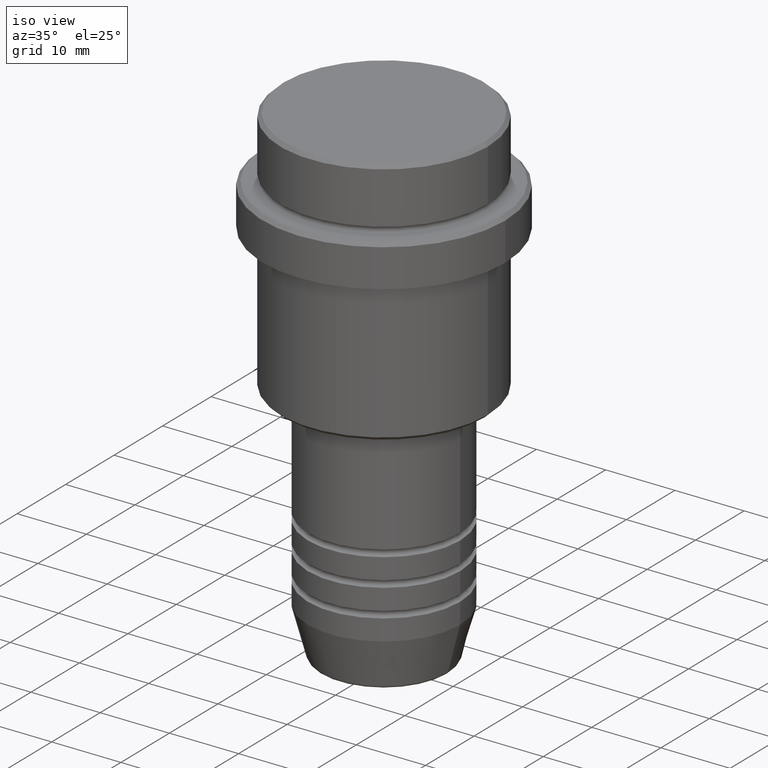
[diagram: clean part render]
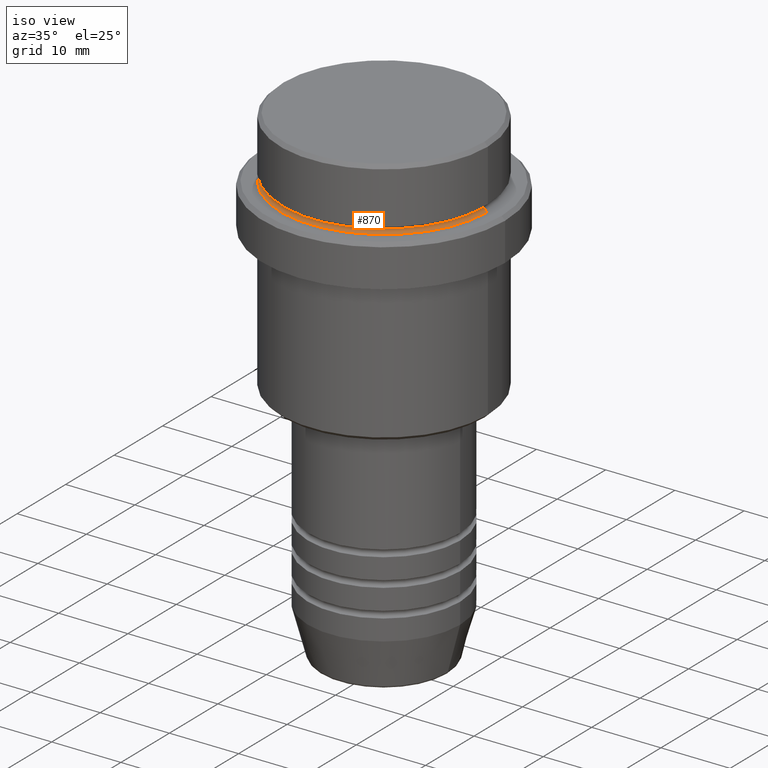
[diagram: same view with one face highlighted and labeled with its STEP entity id]
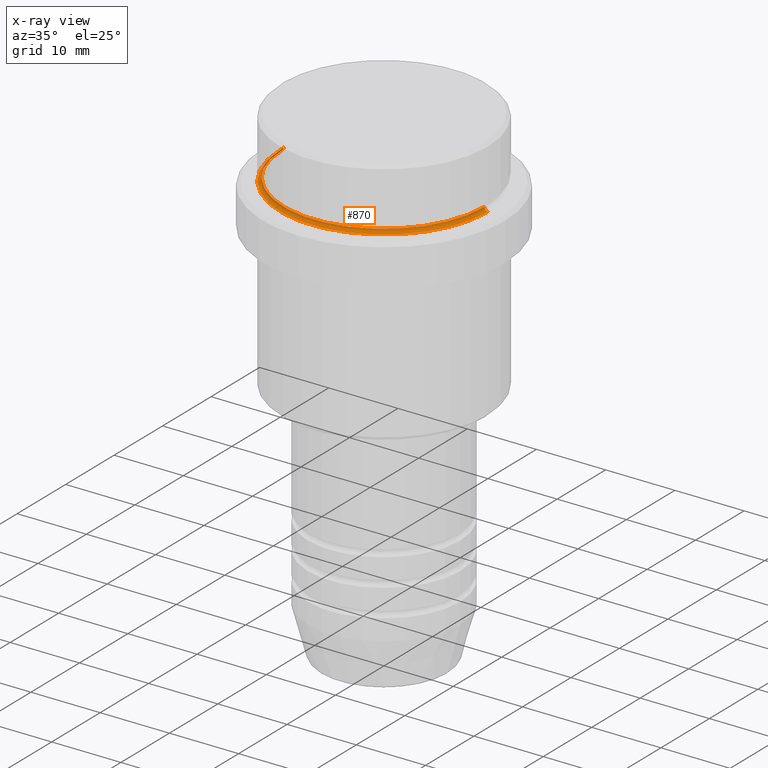
[diagram: x-ray of the same camera — body ghosted, the highlighted face saturated]
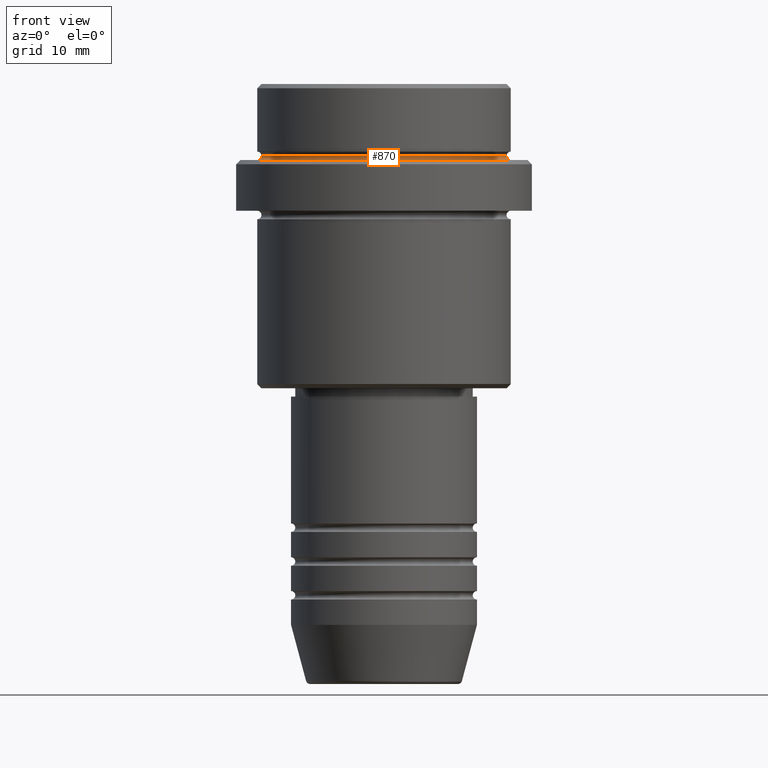
[diagram: same view with one face highlighted and labeled with its STEP entity id]
A machine part, iso view. The second image highlights one B-rep face of the part: STEP entity #870.
The next image is the same camera in x-ray: the body ghosted, the highlighted face saturated — about 3% of this face is hidden behind the body in this view.
A second angle (front view) of the same face is appended — the face is thin or edge-on in the first view.
In plain terms, the highlighted toroidal blend (fillet) surface has major radius 15 mm and minor (blend) radius 0.5 mm.
Its self-contained STEP definition (entity closure, byte-faithful):
#57 = DIRECTION ( 'NONE',  ( -0.000000000000000000, -0.000000000000000000, 1.000000000000000000 ) ) ;
#62 = DIRECTION ( 'NONE',  ( -1.000000000000000000, 1.224646799147349509E-16, 0.000000000000000000 ) ) ;
#64 = AXIS2_PLACEMENT_3D ( 'NONE', #711, #57, #879 ) ;
#135 = EDGE_CURVE ( 'NONE', #681, #762, #868, .T. ) ;
#202 = VERTEX_POINT ( 'NONE', #1125 ) ;
#233 = ORIENTED_EDGE ( 'NONE', *, *, #135, .F. ) ;
#245 = AXIS2_PLACEMENT_3D ( 'NONE', #562, #466, #901 ) ;
#286 = DIRECTION ( 'NONE',  ( 1.224646799147353207E-16, 1.000000000000000000, 0.000000000000000000 ) ) ;
#366 = CIRCLE ( 'NONE', #462, 0.5000000000000004441 ) ;
#370 = CARTESIAN_POINT ( 'NONE',  ( -14.99999999999999289, 1.836970198721028800E-15, -9.000000000000000000 ) ) ;
#394 = ORIENTED_EDGE ( 'NONE', *, *, #764, .F. ) ;
#403 = DIRECTION ( 'NONE',  ( 0.000000000000000000, 0.000000000000000000, -1.000000000000000000 ) ) ;
#425 = CARTESIAN_POINT ( 'NONE',  ( 14.99999999999999289, 0.000000000000000000, -9.000000000000000000 ) ) ;
#462 = AXIS2_PLACEMENT_3D ( 'NONE', #1046, #1263, #403 ) ;
#466 = DIRECTION ( 'NONE',  ( 0.000000000000000000, 0.000000000000000000, -1.000000000000000000 ) ) ;
#513 = CARTESIAN_POINT ( 'NONE',  ( -14.99999999999999289, 1.836970198721028800E-15, -8.499999999999998224 ) ) ;
#562 = CARTESIAN_POINT ( 'NONE',  ( 0.000000000000000000, 0.000000000000000000, -9.000000000000000000 ) ) ;
#609 = TOROIDAL_SURFACE ( 'NONE', #64, 14.99999999999999289, 0.5000000000000000000 ) ;
#662 = DIRECTION ( 'NONE',  ( -0.000000000000000000, -0.000000000000000000, 1.000000000000000000 ) ) ;
#681 = VERTEX_POINT ( 'NONE', #425 ) ;
#711 = CARTESIAN_POINT ( 'NONE',  ( 0.000000000000000000, 0.000000000000000000, -8.499999999999998224 ) ) ;
#762 = VERTEX_POINT ( 'NONE', #370 ) ;
#764 = EDGE_CURVE ( 'NONE', #1180, #202, #827, .T. ) ;
#798 = AXIS2_PLACEMENT_3D ( 'NONE', #513, #286, #62 ) ;
#827 = CIRCLE ( 'NONE', #874, 14.49999999999999289 ) ;
#839 = ORIENTED_EDGE ( 'NONE', *, *, #1228, .T. ) ;
#868 = CIRCLE ( 'NONE', #245, 14.99999999999999289 ) ;
#870 = ADVANCED_FACE ( 'NONE', ( #1359 ), #609, .F. ) ;
#874 = AXIS2_PLACEMENT_3D ( 'NONE', #908, #662, #1137 ) ;
#879 = DIRECTION ( 'NONE',  ( 1.000000000000000000, 0.000000000000000000, 0.000000000000000000 ) ) ;
#901 = DIRECTION ( 'NONE',  ( 1.000000000000000000, 0.000000000000000000, 0.000000000000000000 ) ) ;
#908 = CARTESIAN_POINT ( 'NONE',  ( 0.000000000000000000, 0.000000000000000000, -8.499999999999998224 ) ) ;
#928 = EDGE_CURVE ( 'NONE', #202, #681, #366, .T. ) ;
#1035 = CARTESIAN_POINT ( 'NONE',  ( -14.49999999999999289, 1.806354028742345013E-15, -8.499999999999998224 ) ) ;
#1046 = CARTESIAN_POINT ( 'NONE',  ( 14.99999999999999289, 0.000000000000000000, -8.499999999999998224 ) ) ;
#1125 = CARTESIAN_POINT ( 'NONE',  ( 14.49999999999999289, 0.000000000000000000, -8.499999999999998224 ) ) ;
#1137 = DIRECTION ( 'NONE',  ( 1.000000000000000000, 0.000000000000000000, 0.000000000000000000 ) ) ;
#1180 = VERTEX_POINT ( 'NONE', #1035 ) ;
#1202 = EDGE_LOOP ( 'NONE', ( #394, #839, #233, #1384 ) ) ;
#1228 = EDGE_CURVE ( 'NONE', #1180, #762, #1415, .T. ) ;
#1263 = DIRECTION ( 'NONE',  ( 0.000000000000000000, -1.000000000000000000, 0.000000000000000000 ) ) ;
#1359 = FACE_OUTER_BOUND ( 'NONE', #1202, .T. ) ;
#1384 = ORIENTED_EDGE ( 'NONE', *, *, #928, .F. ) ;
#1415 = CIRCLE ( 'NONE', #798, 0.5000000000000004441 ) ;